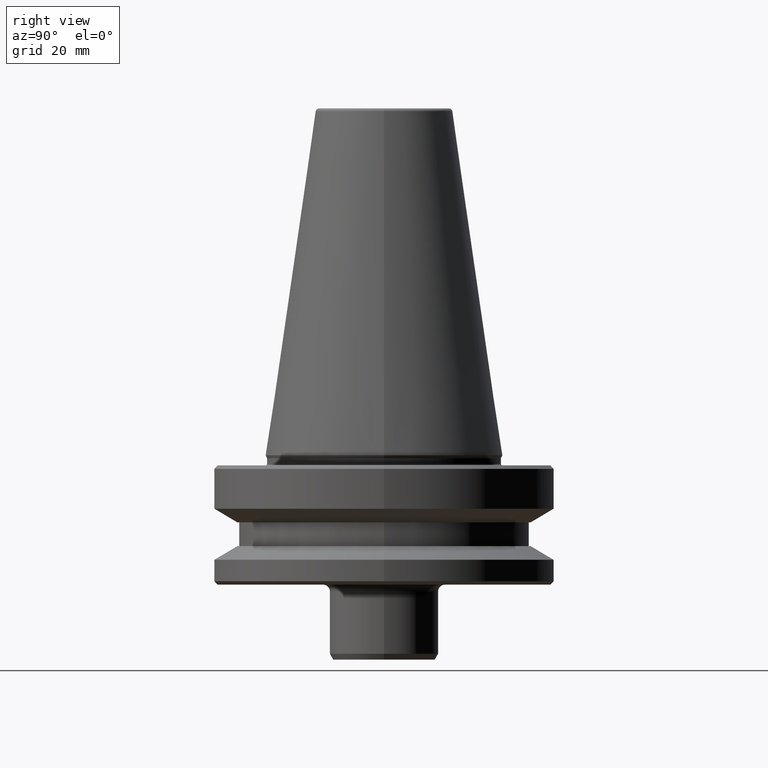
[diagram: clean part render]
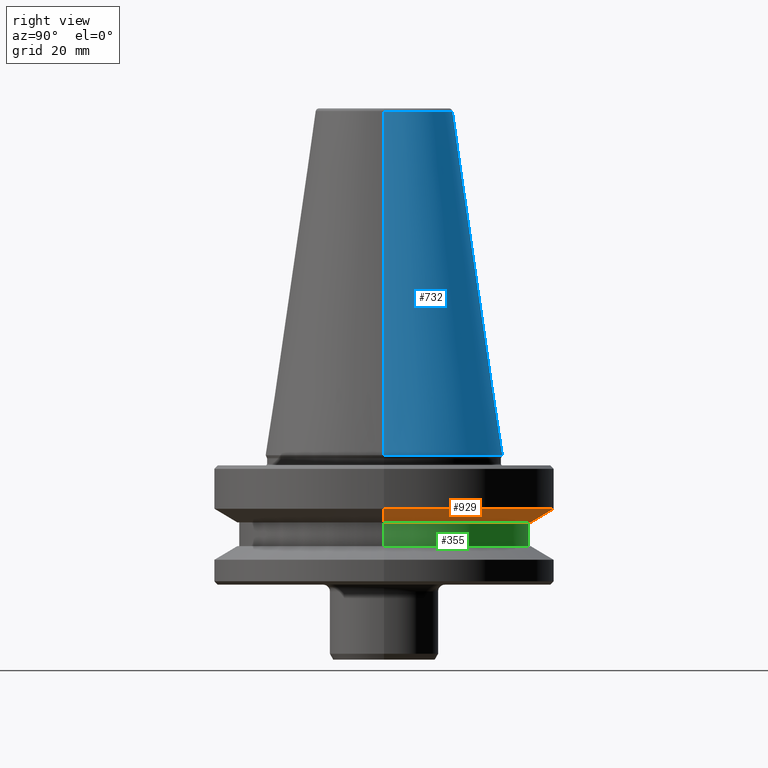
[diagram: same view with three faces highlighted in distinct colors, each labeled with its STEP entity id]
A machine part, right view with three faces highlighted in distinct colors.
Their STEP definitions:

[orange] entity #929 — the highlighted conical surface has half-angle 60 deg.
#14 = EDGE_LOOP ( 'NONE', ( #628, #48, #696, #684 ) ) ;
#19 = VERTEX_POINT ( 'NONE', #232 ) ;
#42 = CARTESIAN_POINT ( 'NONE',  ( -43.07217782649175300, 5.699027233244335200E-015, -19.70000000000070300 ) ) ;
#48 = ORIENTED_EDGE ( 'NONE', *, *, #948, .T. ) ;
#87 = DIRECTION ( 'NONE',  ( -0.0000000000000000000, -0.0000000000000000000, 1.000000000000000000 ) ) ;
#107 = DIRECTION ( 'NONE',  ( 0.8660254037844376000, 0.0000000000000000000, 0.5000000000000020000 ) ) ;
#145 = VECTOR ( 'NONE', #949, 999.9999999999998900 ) ;
#153 = CARTESIAN_POINT ( 'NONE',  ( 43.07217782649175300, 0.0000000000000000000, -19.70000000000070300 ) ) ;
#185 = DIRECTION ( 'NONE',  ( 1.000000000000000000, 0.0000000000000000000, 0.0000000000000000000 ) ) ;
#190 = CARTESIAN_POINT ( 'NONE',  ( 0.0000000000000000000, 0.0000000000000000000, -15.70022000322768300 ) ) ;
#200 = AXIS2_PLACEMENT_3D ( 'NONE', #629, #87, #432 ) ;
#226 = AXIS2_PLACEMENT_3D ( 'NONE', #463, #779, #892 ) ;
#232 = CARTESIAN_POINT ( 'NONE',  ( 50.00000000000027000, 0.0000000000000000000, -15.70022000322768300 ) ) ;
#238 = VERTEX_POINT ( 'NONE', #469 ) ;
#325 = EDGE_CURVE ( 'NONE', #382, #19, #347, .T. ) ;
#340 = CARTESIAN_POINT ( 'NONE',  ( 43.07217782649175300, 0.0000000000000000000, -19.70000000000070300 ) ) ;
#347 = LINE ( 'NONE', #153, #529 ) ;
#349 = LINE ( 'NONE', #772, #145 ) ;
#382 = VERTEX_POINT ( 'NONE', #340 ) ;
#404 = EDGE_CURVE ( 'NONE', #19, #238, #409, .T. ) ;
#409 = CIRCLE ( 'NONE', #577, 50.00000000000027000 ) ;
#432 = DIRECTION ( 'NONE',  ( 1.000000000000000000, 0.0000000000000000000, 0.0000000000000000000 ) ) ;
#463 = CARTESIAN_POINT ( 'NONE',  ( 0.0000000000000000000, 0.0000000000000000000, -19.70000000000070300 ) ) ;
#469 = CARTESIAN_POINT ( 'NONE',  ( -50.00000000000027000, 6.123233995736798400E-015, -15.70022000322768300 ) ) ;
#529 = VECTOR ( 'NONE', #107, 999.9999999999998900 ) ;
#577 = AXIS2_PLACEMENT_3D ( 'NONE', #190, #656, #185 ) ;
#628 = ORIENTED_EDGE ( 'NONE', *, *, #947, .T. ) ;
#629 = CARTESIAN_POINT ( 'NONE',  ( 0.0000000000000000000, 0.0000000000000000000, -19.70000000000070300 ) ) ;
#656 = DIRECTION ( 'NONE',  ( -0.0000000000000000000, -0.0000000000000000000, 1.000000000000000000 ) ) ;
#684 = ORIENTED_EDGE ( 'NONE', *, *, #325, .F. ) ;
#696 = ORIENTED_EDGE ( 'NONE', *, *, #404, .F. ) ;
#742 = VERTEX_POINT ( 'NONE', #42 ) ;
#759 = CIRCLE ( 'NONE', #226, 43.07217782649175300 ) ;
#772 = CARTESIAN_POINT ( 'NONE',  ( -43.07217782649175300, 5.274820470751872700E-015, -19.70000000000070300 ) ) ;
#779 = DIRECTION ( 'NONE',  ( -0.0000000000000000000, -0.0000000000000000000, 1.000000000000000000 ) ) ;
#812 = FACE_OUTER_BOUND ( 'NONE', #14, .T. ) ;
#892 = DIRECTION ( 'NONE',  ( 1.000000000000000000, 0.0000000000000000000, 0.0000000000000000000 ) ) ;
#929 = ADVANCED_FACE ( 'NONE', ( #812 ), #958, .T. ) ;
#947 = EDGE_CURVE ( 'NONE', #382, #742, #759, .T. ) ;
#948 = EDGE_CURVE ( 'NONE', #742, #238, #349, .T. ) ;
#949 = DIRECTION ( 'NONE',  ( -0.8660254037844376000, 1.060575238724905600E-016, 0.5000000000000020000 ) ) ;
#958 = CONICAL_SURFACE ( 'NONE', #200, 43.07217782649175300, 1.047197551196595400 ) ;

[blue] entity #732 — the highlighted conical surface has half-angle 8.297 deg.
#18 = DIRECTION ( 'NONE',  ( -0.1443082234293895400, 0.0000000000000000000, -0.9895327870518760800 ) ) ;
#29 = ORIENTED_EDGE ( 'NONE', *, *, #345, .F. ) ;
#37 = CONICAL_SURFACE ( 'NONE', #414, 34.92499999999964900, 0.1448138426689043500 ) ;
#67 = DIRECTION ( 'NONE',  ( 0.0000000000000000000, 0.0000000000000000000, -1.000000000000000000 ) ) ;
#130 = ORIENTED_EDGE ( 'NONE', *, *, #594, .T. ) ;
#247 = DIRECTION ( 'NONE',  ( 0.1443082234293895400, 1.767266039134429700E-017, -0.9895327870518760800 ) ) ;
#275 = CARTESIAN_POINT ( 'NONE',  ( 0.0000000000000000000, 0.0000000000000000000, 0.0000000000000000000 ) ) ;
#282 = DIRECTION ( 'NONE',  ( -0.0000000000000000000, -0.0000000000000000000, 1.000000000000000000 ) ) ;
#318 = CARTESIAN_POINT ( 'NONE',  ( 34.92499999999964900, 0.0000000000000000000, -1.084202172485504400E-016 ) ) ;
#322 = LINE ( 'NONE', #975, #730 ) ;
#334 = AXIS2_PLACEMENT_3D ( 'NONE', #336, #335, #919 ) ;
#335 = DIRECTION ( 'NONE',  ( -0.0000000000000000000, -0.0000000000000000000, 1.000000000000000000 ) ) ;
#336 = CARTESIAN_POINT ( 'NONE',  ( 0.0000000000000000000, 0.0000000000000000000, 100.9443082234284800 ) ) ;
#345 = EDGE_CURVE ( 'NONE', #636, #413, #322, .T. ) ;
#407 = VERTEX_POINT ( 'NONE', #995 ) ;
#413 = VERTEX_POINT ( 'NONE', #714 ) ;
#414 = AXIS2_PLACEMENT_3D ( 'NONE', #872, #67, #639 ) ;
#454 = CARTESIAN_POINT ( 'NONE',  ( 34.92499999999964900, 4.277078946022088300E-015, 0.0000000000000000000 ) ) ;
#481 = FACE_OUTER_BOUND ( 'NONE', #897, .T. ) ;
#491 = ORIENTED_EDGE ( 'NONE', *, *, #802, .F. ) ;
#538 = DIRECTION ( 'NONE',  ( 1.000000000000000000, 0.0000000000000000000, 0.0000000000000000000 ) ) ;
#568 = CARTESIAN_POINT ( 'NONE',  ( -20.20381645192181700, 0.0000000000000000000, 100.9443082234284800 ) ) ;
#578 = VECTOR ( 'NONE', #247, 999.9999999999998900 ) ;
#594 = EDGE_CURVE ( 'NONE', #407, #693, #778, .T. ) ;
#636 = VERTEX_POINT ( 'NONE', #568 ) ;
#637 = AXIS2_PLACEMENT_3D ( 'NONE', #275, #282, #538 ) ;
#639 = DIRECTION ( 'NONE',  ( -1.000000000000000000, 0.0000000000000000000, 0.0000000000000000000 ) ) ;
#655 = ORIENTED_EDGE ( 'NONE', *, *, #726, .T. ) ;
#693 = VERTEX_POINT ( 'NONE', #318 ) ;
#714 = CARTESIAN_POINT ( 'NONE',  ( -34.92499999999964900, 4.277078946022088300E-015, -1.084202172485504400E-016 ) ) ;
#726 = EDGE_CURVE ( 'NONE', #693, #413, #889, .T. ) ;
#730 = VECTOR ( 'NONE', #18, 999.9999999999998900 ) ;
#732 = ADVANCED_FACE ( 'NONE', ( #481 ), #37, .T. ) ;
#778 = LINE ( 'NONE', #454, #578 ) ;
#802 = EDGE_CURVE ( 'NONE', #407, #636, #867, .T. ) ;
#867 = CIRCLE ( 'NONE', #334, 20.20381645192181700 ) ;
#872 = CARTESIAN_POINT ( 'NONE',  ( 0.0000000000000000000, 0.0000000000000000000, 0.0000000000000000000 ) ) ;
#889 = CIRCLE ( 'NONE', #637, 34.92499999999964900 ) ;
#897 = EDGE_LOOP ( 'NONE', ( #491, #130, #655, #29 ) ) ;
#919 = DIRECTION ( 'NONE',  ( 1.000000000000000000, 0.0000000000000000000, 0.0000000000000000000 ) ) ;
#975 = CARTESIAN_POINT ( 'NONE',  ( -34.92499999999964900, 0.0000000000000000000, 0.0000000000000000000 ) ) ;
#995 = CARTESIAN_POINT ( 'NONE',  ( 20.20381645192181700, 3.375666430431378500E-015, 100.9443082234284800 ) ) ;

[green] entity #355 — the highlighted cylindrical surface (partial cylindrical patch) has radius 42.5 mm, axis along (-0, -0, 1).
#33 = CARTESIAN_POINT ( 'NONE',  ( -42.49999999999975800, 5.204748896376221700E-015, -19.70000000000070300 ) ) ;
#76 = DIRECTION ( 'NONE',  ( -0.0000000000000000000, -0.0000000000000000000, 1.000000000000000000 ) ) ;
#79 = CARTESIAN_POINT ( 'NONE',  ( -42.49999999999975800, 5.204748896376221700E-015, -26.69999999993998000 ) ) ;
#90 = DIRECTION ( 'NONE',  ( 1.000000000000000000, 0.0000000000000000000, 0.0000000000000000000 ) ) ;
#113 = AXIS2_PLACEMENT_3D ( 'NONE', #820, #302, #208 ) ;
#176 = ORIENTED_EDGE ( 'NONE', *, *, #451, .T. ) ;
#180 = CIRCLE ( 'NONE', #113, 42.49999999999975800 ) ;
#201 = ORIENTED_EDGE ( 'NONE', *, *, #771, .F. ) ;
#208 = DIRECTION ( 'NONE',  ( 1.000000000000000000, 0.0000000000000000000, 0.0000000000000000000 ) ) ;
#214 = AXIS2_PLACEMENT_3D ( 'NONE', #397, #552, #998 ) ;
#217 = VECTOR ( 'NONE', #587, 1000.000000000000000 ) ;
#228 = VERTEX_POINT ( 'NONE', #79 ) ;
#244 = LINE ( 'NONE', #542, #838 ) ;
#295 = FACE_OUTER_BOUND ( 'NONE', #331, .T. ) ;
#302 = DIRECTION ( 'NONE',  ( -0.0000000000000000000, -0.0000000000000000000, 1.000000000000000000 ) ) ;
#306 = CARTESIAN_POINT ( 'NONE',  ( 42.49999999999975800, 0.0000000000000000000, -19.70000000000070300 ) ) ;
#329 = CARTESIAN_POINT ( 'NONE',  ( 0.0000000000000000000, 0.0000000000000000000, 108.3108805077434200 ) ) ;
#331 = EDGE_LOOP ( 'NONE', ( #176, #795, #441, #201 ) ) ;
#333 = VERTEX_POINT ( 'NONE', #306 ) ;
#355 = ADVANCED_FACE ( 'NONE', ( #295 ), #484, .T. ) ;
#397 = CARTESIAN_POINT ( 'NONE',  ( 0.0000000000000000000, 0.0000000000000000000, -19.70000000000070300 ) ) ;
#431 = LINE ( 'NONE', #599, #217 ) ;
#441 = ORIENTED_EDGE ( 'NONE', *, *, #992, .F. ) ;
#451 = EDGE_CURVE ( 'NONE', #595, #228, #180, .T. ) ;
#484 = CYLINDRICAL_SURFACE ( 'NONE', #745, 42.49999999999975800 ) ;
#513 = VERTEX_POINT ( 'NONE', #33 ) ;
#542 = CARTESIAN_POINT ( 'NONE',  ( 42.49999999999975800, 0.0000000000000000000, 108.3108805077434200 ) ) ;
#552 = DIRECTION ( 'NONE',  ( -0.0000000000000000000, -0.0000000000000000000, 1.000000000000000000 ) ) ;
#556 = CIRCLE ( 'NONE', #214, 42.49999999999975800 ) ;
#587 = DIRECTION ( 'NONE',  ( -0.0000000000000000000, -0.0000000000000000000, 1.000000000000000000 ) ) ;
#595 = VERTEX_POINT ( 'NONE', #746 ) ;
#599 = CARTESIAN_POINT ( 'NONE',  ( -42.49999999999975800, 5.204748896376221700E-015, 108.3108805077434200 ) ) ;
#653 = DIRECTION ( 'NONE',  ( -0.0000000000000000000, -0.0000000000000000000, 1.000000000000000000 ) ) ;
#745 = AXIS2_PLACEMENT_3D ( 'NONE', #329, #653, #90 ) ;
#746 = CARTESIAN_POINT ( 'NONE',  ( 42.49999999999975800, 0.0000000000000000000, -26.69999999993998000 ) ) ;
#771 = EDGE_CURVE ( 'NONE', #595, #333, #244, .T. ) ;
#795 = ORIENTED_EDGE ( 'NONE', *, *, #884, .T. ) ;
#820 = CARTESIAN_POINT ( 'NONE',  ( 0.0000000000000000000, 0.0000000000000000000, -26.69999999993998000 ) ) ;
#838 = VECTOR ( 'NONE', #76, 1000.000000000000000 ) ;
#884 = EDGE_CURVE ( 'NONE', #228, #513, #431, .T. ) ;
#992 = EDGE_CURVE ( 'NONE', #333, #513, #556, .T. ) ;
#998 = DIRECTION ( 'NONE',  ( 1.000000000000000000, 0.0000000000000000000, 0.0000000000000000000 ) ) ;